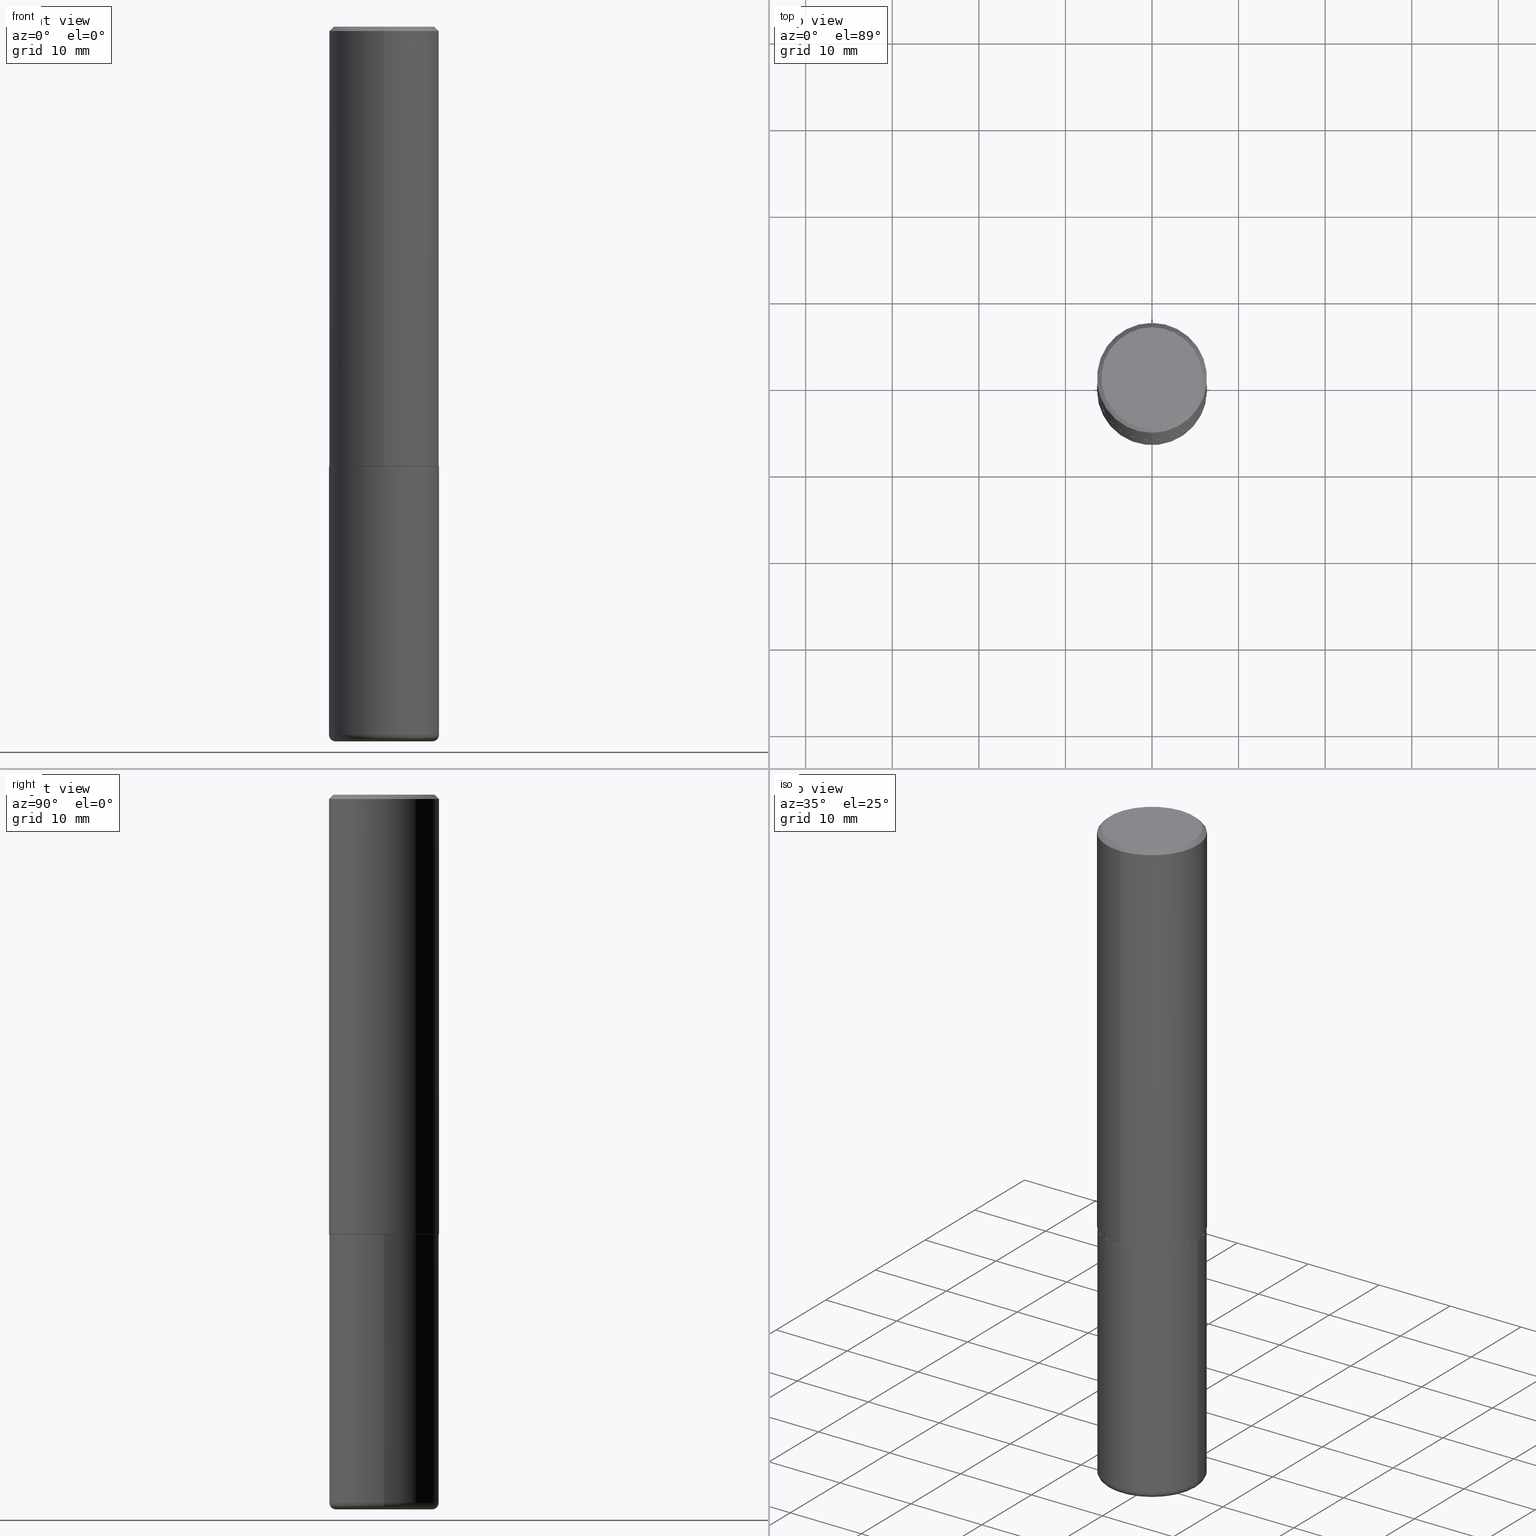
[diagram: canonical four-view strip — front | top / right | iso, engineering-drawing reading convention]
A machine part, canonical four-view strip (front | top / right | iso — engineering-drawing reading convention). The complete STEP part file that produces these views, byte-faithful:
ISO-10303-21;
HEADER;
FILE_DESCRIPTION (( 'STEP AP203' ),
    '1' );
FILE_NAME ('36618.STEP',
    '2024-03-01T17:04:01',
    ( '' ),
    ( '' ),
    'SwSTEP 2.0',
    'SolidWorks 2023',
    '' );
FILE_SCHEMA (( 'CONFIG_CONTROL_DESIGN' ));
ENDSEC;

DATA;
#1 = DIRECTION ( 'NONE',  ( 1.000000000000000000, -6.982962677686263555E-15, 4.883557194083112340E-29 ) ) ;
#2 = DIRECTION ( 'NONE',  ( -6.982962677686265133E-15, -1.000000000000000000, 3.291383124896702687E-15 ) ) ;
#3 = CLOSED_SHELL ( 'NONE', ( #72, #118, #346, #25, #196, #81 ) ) ;
#4 = PRODUCT_DEFINITION_FORMATION_WITH_SPECIFIED_SOURCE ( 'ANY', '', #134, .NOT_KNOWN. ) ;
#5 = EDGE_LOOP ( 'NONE', ( #264, #105, #76, #334 ) ) ;
#6 = ORIENTED_EDGE ( 'NONE', *, *, #54, .F. ) ;
#7 = ORIENTED_EDGE ( 'NONE', *, *, #62, .F. ) ;
#8 = LINE ( 'NONE', #41, #177 ) ;
#9 = CALENDAR_DATE ( 2024, 1, 3 ) ;
#10 = VERTEX_POINT ( 'NONE', #109 ) ;
#11 = DIRECTION ( 'NONE',  ( -2.443008383024178884E-29, 3.495004804848227221E-15, 1.000000000000000000 ) ) ;
#12 = DIRECTION ( 'NONE',  ( -6.982962677686266711E-15, -1.000000000000000000, 3.495004804848227221E-15 ) ) ;
#13 = PERSON_AND_ORGANIZATION ( #143, #390 ) ;
#14 = ORIENTED_EDGE ( 'NONE', *, *, #136, .F. ) ;
#15 = CIRCLE ( 'NONE', #314, 0.2500000000000000000 ) ;
#16 = PERSON_AND_ORGANIZATION_ROLE ( 'creator' ) ;
#17 = VERTEX_POINT ( 'NONE', #256 ) ;
#18 = CARTESIAN_POINT ( 'NONE',  ( 0.000000000000000000, 0.000000000000000000, 0.000000000000000000 ) ) ;
#19 = DIRECTION ( 'NONE',  ( -6.982962677686265133E-15, -1.000000000000000000, 3.278217592397113101E-15 ) ) ;
#20 = CIRCLE ( 'NONE', #50, 0.02999999999999971440 ) ;
#21 = EDGE_CURVE ( 'NONE', #289, #164, #394, .T. ) ;
#22 = FACE_OUTER_BOUND ( 'NONE', #204, .T. ) ;
#23 = PERSON_AND_ORGANIZATION ( #143, #390 ) ;
#24 = CARTESIAN_POINT ( 'NONE',  ( 0.2199999999999999734, -1.277882170016590784E-14, -3.220000000000000195 ) ) ;
#25 = ADVANCED_FACE ( 'NONE', ( #362 ), #45, .T. ) ;
#26 = CARTESIAN_POINT ( 'NONE',  ( 1.358398051899500366E-28, -3.275945279050347919E-15, -3.249999999999999556 ) ) ;
#27 = DATE_AND_TIME ( #86, #253 ) ;
#28 = DIMENSIONAL_EXPONENTS ( 1.000000000000000000, 0.000000000000000000, 0.000000000000000000, 0.000000000000000000, 0.000000000000000000, 0.000000000000000000, 0.000000000000000000 ) ;
#29 = CARTESIAN_POINT ( 'NONE',  ( 1.769251412042697971E-15, 0.2489999999999930047, -2.000000000000000888 ) ) ;
#30 = DIRECTION ( 'NONE',  ( -6.982962677686265922E-15, -1.000000000000000000, 3.495004804848226432E-15 ) ) ;
#31 = EDGE_CURVE ( 'NONE', #164, #234, #141, .T. ) ;
#32 = LINE ( 'NONE', #281, #284 ) ;
#33 = DIRECTION ( 'NONE',  ( 0.000000000000000000, 0.000000000000000000, 1.000000000000000000 ) ) ;
#34 = DIRECTION ( 'NONE',  ( 1.000000000000000000, -6.982962677686266711E-15, 0.000000000000000000 ) ) ;
#35 = APPROVAL_DATE_TIME ( #27, #316 ) ;
#36 = DIRECTION ( 'NONE',  ( -2.443008383024178604E-29, 3.495004804848226826E-15, 1.000000000000000000 ) ) ;
#37 = CLOSED_SHELL ( 'NONE', ( #75, #210, #154, #217, #198, #313, #144, #340 ) ) ;
#38 = CIRCLE ( 'NONE', #58, 0.2489999999999999991 ) ;
#39 = CARTESIAN_POINT ( 'NONE',  ( 0.2500000000000000000, -8.728703347107857054E-15, -2.000000000000000000 ) ) ;
#40 = PERSON_AND_ORGANIZATION ( #143, #390 ) ;
#41 = CARTESIAN_POINT ( 'NONE',  ( 1.776356839400250859E-15, 0.2500000000000001110, -8.737512012120570024E-16 ) ) ;
#42 = ORIENTED_EDGE ( 'NONE', *, *, #136, .T. ) ;
#43 = APPROVAL_PERSON_ORGANIZATION ( #120, #87, #151 ) ;
#44 = ORIENTED_EDGE ( 'NONE', *, *, #254, .T. ) ;
#45 = CYLINDRICAL_SURFACE ( 'NONE', #148, 0.2500000000000000000 ) ;
#46 = LENGTH_MEASURE_WITH_UNIT ( LENGTH_MEASURE( 0.02539999999999999897 ), #127 );
#47 = DATE_AND_TIME ( #9, #401 ) ;
#48 = ORIENTED_EDGE ( 'NONE', *, *, #183, .T. ) ;
#49 = ORIENTED_EDGE ( 'NONE', *, *, #406, .T. ) ;
#50 = AXIS2_PLACEMENT_3D ( 'NONE', #24, #227, #121 ) ;
#51 = EDGE_CURVE ( 'NONE', #129, #10, #85, .T. ) ;
#52 = EDGE_LOOP ( 'NONE', ( #259, #42, #137, #199 ) ) ;
#53 = DIRECTION ( 'NONE',  ( 1.000000000000000000, -6.982962677686266711E-15, 4.876176775795935793E-29 ) ) ;
#54 = EDGE_CURVE ( 'NONE', #10, #288, #312, .T. ) ;
#55 = CARTESIAN_POINT ( 'NONE',  ( 4.883573757665332873E-29, -6.986514604891604953E-15, -1.998999999999999888 ) ) ;
#56 = DIRECTION ( 'NONE',  ( -2.445468806185136877E-29, 3.491481338843145188E-15, 1.000000000000000000 ) ) ;
#57 = AXIS2_PLACEMENT_3D ( 'NONE', #26, #409, #276 ) ;
#58 = AXIS2_PLACEMENT_3D ( 'NONE', #321, #36, #216 ) ;
#59 = DIRECTION ( 'NONE',  ( -2.445468806185136597E-29, 3.491481338843145583E-15, 1.000000000000000000 ) ) ;
#60 = DIRECTION ( 'NONE',  ( 1.000000000000000000, 0.000000000000000000, 0.000000000000000000 ) ) ;
#61 = CARTESIAN_POINT ( 'NONE',  ( 1.776356839400276103E-15, 0.2499999999999932276, -1.999000000000000776 ) ) ;
#62 = EDGE_CURVE ( 'NONE', #283, #110, #300, .T. ) ;
#63 = DIRECTION ( 'NONE',  ( -2.445468806185136597E-29, 3.491481338843145583E-15, 1.000000000000000000 ) ) ;
#64 = AXIS2_PLACEMENT_3D ( 'NONE', #354, #63, #1 ) ;
#65 = AXIS2_PLACEMENT_3D ( 'NONE', #246, #191, #385 ) ;
#66 =( CONVERSION_BASED_UNIT ( 'INCH', #46 ) LENGTH_UNIT ( ) NAMED_UNIT ( #28 ) );
#67 = LINE ( 'NONE', #392, #269 ) ;
#68 = APPROVAL ( #398, 'UNSPECIFIED' ) ;
#69 = CARTESIAN_POINT ( 'NONE',  ( 4.886016766048357208E-29, -6.990009609696454441E-15, -2.000000000000000000 ) ) ;
#70 = EDGE_LOOP ( 'NONE', ( #393, #14 ) ) ;
#71 = ORIENTED_EDGE ( 'NONE', *, *, #251, .T. ) ;
#72 = ADVANCED_FACE ( 'NONE', ( #236 ), #211, .T. ) ;
#73 = AXIS2_PLACEMENT_3D ( 'NONE', #158, #315, #418 ) ;
#74 = CONICAL_SURFACE ( 'NONE', #295, 0.2489999999999999991, 0.7853981633975165577 ) ;
#75 = ADVANCED_FACE ( 'NONE', ( #113 ), #171, .T. ) ;
#76 = ORIENTED_EDGE ( 'NONE', *, *, #412, .F. ) ;
#77 = PERSON_AND_ORGANIZATION_ROLE ( 'design_supplier' ) ;
#78 = VERTEX_POINT ( 'NONE', #212 ) ;
#79 = EDGE_LOOP ( 'NONE', ( #280, #327, #396, #168 ) ) ;
#80 = EDGE_LOOP ( 'NONE', ( #368, #173, #6, #252 ) ) ;
#81 = ADVANCED_FACE ( 'NONE', ( #341 ), #184, .T. ) ;
#82 = CC_DESIGN_APPROVAL ( #316, ( #415 ) ) ;
#83 = DIRECTION ( 'NONE',  ( -2.443008383024178604E-29, 3.495004804848226826E-15, 1.000000000000000000 ) ) ;
#84 = EDGE_CURVE ( 'NONE', #10, #164, #32, .T. ) ;
#85 = LINE ( 'NONE', #175, #159 ) ;
#86 = CALENDAR_DATE ( 2024, 1, 3 ) ;
#87 = APPROVAL ( #92, 'UNSPECIFIED' ) ;
#88 = CIRCLE ( 'NONE', #357, 0.2500000000000000000 ) ;
#89 = ADVANCED_BREP_SHAPE_REPRESENTATION ( '36618', ( #214, #360, #195 ), #374 ) ;
#90 = CARTESIAN_POINT ( 'NONE',  ( -1.166879368671202230E-45, 1.669355303290318093E-31, 4.776403457227324398E-17 ) ) ;
#91 = CARTESIAN_POINT ( 'NONE',  ( 4.886016766048368698E-31, -6.990009609696470120E-17, -0.02000000000000004552 ) ) ;
#92 = APPROVAL_STATUS ( 'not_yet_approved' ) ;
#93 = PLANE ( 'NONE',  #240 ) ;
#94 = DATE_AND_TIME ( #380, #350 ) ;
#95 = FACE_OUTER_BOUND ( 'NONE', #397, .T. ) ;
#96 = AXIS2_PLACEMENT_3D ( 'NONE', #344, #372, #309 ) ;
#97 = LOCAL_TIME ( 12, 4, 1.000000000000000000, #367 ) ;
#98 = CARTESIAN_POINT ( 'NONE',  ( -0.2500000000000000000, -7.336409454980359463E-15, -2.000000000000000000 ) ) ;
#99 = CARTESIAN_POINT ( 'NONE',  ( 4.890937612370273194E-29, -6.982962677686291165E-15, -2.000000000000000000 ) ) ;
#100 = PERSON_AND_ORGANIZATION ( #143, #390 ) ;
#101 = CARTESIAN_POINT ( 'NONE',  ( 4.886016766048368698E-31, -6.990009609696470120E-17, -0.02000000000000004552 ) ) ;
#102 = SECURITY_CLASSIFICATION_LEVEL ( 'unclassified' ) ;
#103 = CIRCLE ( 'NONE', #324, 0.2299999999999999267 ) ;
#104 = EDGE_CURVE ( 'NONE', #78, #200, #302, .T. ) ;
#105 = ORIENTED_EDGE ( 'NONE', *, *, #265, .T. ) ;
#106 = DIRECTION ( 'NONE',  ( -2.443008383024178604E-29, 3.495004804848226826E-15, 1.000000000000000000 ) ) ;
#107 = DIRECTION ( 'NONE',  ( -4.851104656540959542E-15, -0.7071067811865493491, -0.7071067811865456854 ) ) ;
#108 = ORIENTED_EDGE ( 'NONE', *, *, #292, .F. ) ;
#109 = CARTESIAN_POINT ( 'NONE',  ( -1.745740669421519149E-15, -0.2500000000000072164, -1.998999999999999000 ) ) ;
#110 = VERTEX_POINT ( 'NONE', #98 ) ;
#111 = CC_DESIGN_DATE_AND_TIME_ASSIGNMENT ( #410, #384, ( #415 ) ) ;
#112 = SHAPE_DEFINITION_REPRESENTATION ( #403, #89 ) ;
#113 = FACE_OUTER_BOUND ( 'NONE', #80, .T. ) ;
#114 = CARTESIAN_POINT ( 'NONE',  ( 4.886016766048357208E-29, -6.990009609696454441E-15, -2.000000000000000000 ) ) ;
#115 = DIRECTION ( 'NONE',  ( -2.445468806185136597E-29, 3.491481338843145583E-15, 1.000000000000000000 ) ) ;
#116 = CIRCLE ( 'NONE', #389, 0.2199999999999999734 ) ;
#117 = AXIS2_PLACEMENT_3D ( 'NONE', #257, #106, #12 ) ;
#118 = ADVANCED_FACE ( 'NONE', ( #245 ), #239, .T. ) ;
#119 = DIRECTION ( 'NONE',  ( 7.105427357601001859E-15, 1.000000000000000000, -3.491481338843145583E-15 ) ) ;
#120 = PERSON_AND_ORGANIZATION ( #143, #390 ) ;
#121 = DIRECTION ( 'NONE',  ( 1.000000000000000000, -6.982962677686269866E-15, 0.000000000000000000 ) ) ;
#122 = ORIENTED_EDGE ( 'NONE', *, *, #370, .T. ) ;
#123 = DIRECTION ( 'NONE',  ( 6.982962677686265922E-15, 1.000000000000000000, -3.500180241882337261E-15 ) ) ;
#124 = CIRCLE ( 'NONE', #294, 0.2500000000000000000 ) ;
#125 = DIRECTION ( 'NONE',  ( 2.438088387897960049E-29, -3.491481338843145188E-15, -1.000000000000000000 ) ) ;
#126 = CC_DESIGN_PERSON_AND_ORGANIZATION_ASSIGNMENT ( #23, #145, ( #415 ) ) ;
#127 =( LENGTH_UNIT ( ) NAMED_UNIT ( * ) SI_UNIT ( $, .METRE. ) );
#128 = AXIS2_PLACEMENT_3D ( 'NONE', #146, #190, #413 ) ;
#129 = VERTEX_POINT ( 'NONE', #192 ) ;
#130 = EDGE_CURVE ( 'NONE', #234, #164, #124, .T. ) ;
#131 = CARTESIAN_POINT ( 'NONE',  ( -1.715124499442882299E-15, -0.2500000000000000555, -0.01999999999999917122 ) ) ;
#132 = VERTEX_POINT ( 'NONE', #39 ) ;
#133 = ORIENTED_EDGE ( 'NONE', *, *, #62, .T. ) ;
#134 = PRODUCT ( '36618', '36618', '', ( #218 ) ) ;
#135 = ORIENTED_EDGE ( 'NONE', *, *, #161, .T. ) ;
#136 = EDGE_CURVE ( 'NONE', #200, #78, #116, .T. ) ;
#137 = ORIENTED_EDGE ( 'NONE', *, *, #299, .T. ) ;
#138 = AXIS2_PLACEMENT_3D ( 'NONE', #219, #225, #369 ) ;
#139 = CARTESIAN_POINT ( 'NONE',  ( -1.715124499442882299E-15, -0.2500000000000000555, -0.01999999999999917122 ) ) ;
#140 = EDGE_LOOP ( 'NONE', ( #229, #48 ) ) ;
#141 = CIRCLE ( 'NONE', #382, 0.2500000000000000000 ) ;
#142 = CC_DESIGN_APPROVAL ( #68, ( #417 ) ) ;
#143 = PERSON ( 'UNSPECIFIED', 'UNSPECIFIED', 'UNSPECIFIED', ('UNSPECIFIED'), ('UNSPECIFIED'), ('UNSPECIFIED') ) ;
#144 = ADVANCED_FACE ( 'NONE', ( #404 ), #305, .F. ) ;
#145 = PERSON_AND_ORGANIZATION_ROLE ( 'creator' ) ;
#146 = CARTESIAN_POINT ( 'NONE',  ( 7.874409555916140425E-29, -1.124256991107492948E-14, -3.220000000000000195 ) ) ;
#147 = DIRECTION ( 'NONE',  ( -2.443008383024178043E-29, 3.495004804848227221E-15, 1.000000000000000000 ) ) ;
#148 = AXIS2_PLACEMENT_3D ( 'NONE', #170, #291, #205 ) ;
#149 = DIRECTION ( 'NONE',  ( -6.982962677686265133E-15, -1.000000000000000000, 3.291383124896702687E-15 ) ) ;
#150 = AXIS2_PLACEMENT_3D ( 'NONE', #193, #325, #163 ) ;
#151 = APPROVAL_ROLE ( '' ) ;
#152 = PRODUCT_RELATED_PRODUCT_CATEGORY ( 'detail', '', ( #134 ) ) ;
#153 = LINE ( 'NONE', #29, #338 ) ;
#154 = ADVANCED_FACE ( 'NONE', ( #408 ), #268, .T. ) ;
#155 = DIRECTION ( 'NONE',  ( -2.443008383024178884E-29, 3.495004804848227221E-15, 1.000000000000000000 ) ) ;
#156 = APPLICATION_PROTOCOL_DEFINITION ( 'international standard', 'config_control_design', 1994, #353 ) ;
#157 = CARTESIAN_POINT ( 'NONE',  ( -1.646519519465166968E-15, -0.2299999999999999267, 8.516151396873652617E-16 ) ) ;
#158 = CARTESIAN_POINT ( 'NONE',  ( 7.947773620101692818E-29, -1.134731435124022127E-14, -3.249999999999999556 ) ) ;
#159 = VECTOR ( 'NONE', #400, 39.37007874015748143 ) ;
#160 = AXIS2_PLACEMENT_3D ( 'NONE', #243, #377, #249 ) ;
#161 = EDGE_CURVE ( 'NONE', #17, #129, #222, .T. ) ;
#162 = COORDINATED_UNIVERSAL_TIME_OFFSET ( 5, 0, .BEHIND. ) ;
#163 = DIRECTION ( 'NONE',  ( 1.000000000000000000, -6.982962677686270655E-15, 0.000000000000000000 ) ) ;
#164 = VERTEX_POINT ( 'NONE', #131 ) ;
#165 = DIRECTION ( 'NONE',  ( -6.982962677686265922E-15, -1.000000000000000000, 3.500180241882337261E-15 ) ) ;
#166 = ORIENTED_EDGE ( 'NONE', *, *, #130, .T. ) ;
#167 = CC_DESIGN_APPROVAL ( #87, ( #4 ) ) ;
#168 = ORIENTED_EDGE ( 'NONE', *, *, #209, .F. ) ;
#169 = ORIENTED_EDGE ( 'NONE', *, *, #391, .T. ) ;
#170 = CARTESIAN_POINT ( 'NONE',  ( 0.000000000000000000, 0.000000000000000000, 0.000000000000000000 ) ) ;
#171 = CONICAL_SURFACE ( 'NONE', #96, 0.2489999999999999991, 0.7853981633975165577 ) ;
#172 = TOROIDAL_SURFACE ( 'NONE', #138, 0.2199999999999999734, 0.02999999999999971440 ) ;
#173 = ORIENTED_EDGE ( 'NONE', *, *, #292, .T. ) ;
#174 = PERSON_AND_ORGANIZATION ( #143, #390 ) ;
#175 = CARTESIAN_POINT ( 'NONE',  ( -1.738757706743831360E-15, -0.2490000000000069935, -1.999999999999999112 ) ) ;
#176 = AXIS2_PLACEMENT_3D ( 'NONE', #69, #286, #2 ) ;
#177 = VECTOR ( 'NONE', #11, 39.37007874015748143 ) ;
#178 = DIRECTION ( 'NONE',  ( 1.000000000000000000, -6.982962677686263555E-15, 0.000000000000000000 ) ) ;
#179 = CARTESIAN_POINT ( 'NONE',  ( 4.883573757665332873E-29, -6.986514604891604953E-15, -1.998999999999999888 ) ) ;
#180 = FACE_OUTER_BOUND ( 'NONE', #230, .T. ) ;
#181 = CARTESIAN_POINT ( 'NONE',  ( 4.890937612370273194E-29, -6.982962677686291165E-15, -2.000000000000000000 ) ) ;
#182 = APPROVAL_DATE_TIME ( #343, #68 ) ;
#183 = EDGE_CURVE ( 'NONE', #289, #361, #416, .T. ) ;
#184 = PLANE ( 'NONE',  #57 ) ;
#185 = PERSON_AND_ORGANIZATION_ROLE ( 'design_owner' ) ;
#186 = AXIS2_PLACEMENT_3D ( 'NONE', #375, #115, #53 ) ;
#187 = CARTESIAN_POINT ( 'NONE',  ( 0.2499999999999998612, -1.298831058049649616E-14, -3.220000000000000195 ) ) ;
#188 = LOCAL_TIME ( 12, 4, 1.000000000000000000, #310 ) ;
#189 = CARTESIAN_POINT ( 'NONE',  ( 0.000000000000000000, 0.000000000000000000, 0.000000000000000000 ) ) ;
#190 = DIRECTION ( 'NONE',  ( -2.445468806185136597E-29, 3.491481338843145583E-15, 1.000000000000000000 ) ) ;
#191 = DIRECTION ( 'NONE',  ( 2.443008383024178043E-29, -3.495004804848227221E-15, -1.000000000000000000 ) ) ;
#192 = CARTESIAN_POINT ( 'NONE',  ( -1.738757706743831360E-15, -0.2490000000000069935, -1.999999999999999112 ) ) ;
#193 = CARTESIAN_POINT ( 'NONE',  ( 7.874409555916140425E-29, -1.124256991107492948E-14, -3.220000000000000195 ) ) ;
#194 = VECTOR ( 'NONE', #402, 39.37007874015748143 ) ;
#195 = AXIS2_PLACEMENT_3D ( 'NONE', #189, #33, #60 ) ;
#196 = ADVANCED_FACE ( 'NONE', ( #206 ), #172, .T. ) ;
#197 = ORIENTED_EDGE ( 'NONE', *, *, #365, .F. ) ;
#198 = ADVANCED_FACE ( 'NONE', ( #180 ), #306, .T. ) ;
#199 = ORIENTED_EDGE ( 'NONE', *, *, #254, .F. ) ;
#200 = VERTEX_POINT ( 'NONE', #358 ) ;
#201 = ORIENTED_EDGE ( 'NONE', *, *, #251, .F. ) ;
#202 = PERSON_AND_ORGANIZATION_ROLE ( 'classification_officer' ) ;
#203 = ORIENTED_EDGE ( 'NONE', *, *, #370, .F. ) ;
#204 = EDGE_LOOP ( 'NONE', ( #297, #49, #326, #366 ) ) ;
#205 = DIRECTION ( 'NONE',  ( 1.000000000000000000, -6.982962677686266711E-15, 4.876176775795935793E-29 ) ) ;
#206 = FACE_OUTER_BOUND ( 'NONE', #52, .T. ) ;
#207 = CIRCLE ( 'NONE', #150, 0.2500000000000000000 ) ;
#208 = EDGE_LOOP ( 'NONE', ( #7, #44, #169, #201 ) ) ;
#209 = EDGE_CURVE ( 'NONE', #361, #234, #67, .T. ) ;
#210 = ADVANCED_FACE ( 'NONE', ( #22 ), #298, .T. ) ;
#211 = CYLINDRICAL_SURFACE ( 'NONE', #186, 0.2500000000000000000 ) ;
#212 = CARTESIAN_POINT ( 'NONE',  ( 0.2199999999999999734, -1.288356614033119963E-14, -3.249999999999999556 ) ) ;
#213 = CONICAL_SURFACE ( 'NONE', #247, 0.2500000000000000000, 0.7853981633974473908 ) ;
#214 = MANIFOLD_SOLID_BREP ( 'Body-Move/Copy2[1]', #3 ) ;
#215 = PERSON_AND_ORGANIZATION ( #143, #390 ) ;
#216 = DIRECTION ( 'NONE',  ( -6.982962677686265133E-15, -1.000000000000000000, 3.291383124896702687E-15 ) ) ;
#217 = ADVANCED_FACE ( 'NONE', ( #95 ), #213, .T. ) ;
#218 = MECHANICAL_CONTEXT ( 'NONE', #303, 'mechanical' ) ;
#219 = CARTESIAN_POINT ( 'NONE',  ( 7.874409555916140425E-29, -1.124256991107492948E-14, -3.220000000000000195 ) ) ;
#220 = LINE ( 'NONE', #347, #261 ) ;
#221 = APPROVAL_DATE_TIME ( #94, #87 ) ;
#222 = CIRCLE ( 'NONE', #176, 0.2489999999999999991 ) ;
#223 = DIRECTION ( 'NONE',  ( -2.443008383024178604E-29, 3.495004804848226826E-15, 1.000000000000000000 ) ) ;
#224 = APPROVAL_PERSON_ORGANIZATION ( #13, #68, #262 ) ;
#225 = DIRECTION ( 'NONE',  ( -2.445468806185136597E-29, 3.491481338843145583E-15, 1.000000000000000000 ) ) ;
#226 = PLANE ( 'NONE',  #65 ) ;
#227 = DIRECTION ( 'NONE',  ( -6.982962677686266711E-15, -1.000000000000000000, 3.491481338843145583E-15 ) ) ;
#228 = CIRCLE ( 'NONE', #407, 0.02999999999999971440 ) ;
#229 = ORIENTED_EDGE ( 'NONE', *, *, #237, .T. ) ;
#230 = EDGE_LOOP ( 'NONE', ( #388, #122, #332, #330 ) ) ;
#231 =( NAMED_UNIT ( * ) SI_UNIT ( $, .STERADIAN. ) SOLID_ANGLE_UNIT ( ) );
#232 = ORIENTED_EDGE ( 'NONE', *, *, #329, .T. ) ;
#233 = ORIENTED_EDGE ( 'NONE', *, *, #391, .F. ) ;
#234 = VERTEX_POINT ( 'NONE', #345 ) ;
#235 = CIRCLE ( 'NONE', #128, 0.2500000000000000000 ) ;
#236 = FACE_OUTER_BOUND ( 'NONE', #285, .T. ) ;
#237 = EDGE_CURVE ( 'NONE', #361, #289, #103, .T. ) ;
#238 = DIRECTION ( 'NONE',  ( -2.443008383024178604E-29, 3.495004804848226826E-15, 1.000000000000000000 ) ) ;
#239 = TOROIDAL_SURFACE ( 'NONE', #64, 0.2199999999999999734, 0.02999999999999971440 ) ;
#240 = AXIS2_PLACEMENT_3D ( 'NONE', #99, #125, #355 ) ;
#241 = DIRECTION ( 'NONE',  ( 5.024295867788404755E-15, 0.7071067811865981989, 0.7071067811864968355 ) ) ;
#242 = DIRECTION ( 'NONE',  ( -2.445468806185136597E-29, 3.491481338843145583E-15, 1.000000000000000000 ) ) ;
#243 = CARTESIAN_POINT ( 'NONE',  ( 0.000000000000000000, 0.000000000000000000, 0.000000000000000000 ) ) ;
#244 = COORDINATED_UNIVERSAL_TIME_OFFSET ( 5, 0, .BEHIND. ) ;
#245 = FACE_OUTER_BOUND ( 'NONE', #5, .T. ) ;
#246 = CARTESIAN_POINT ( 'NONE',  ( 1.606081415867840870E-15, 0.2299999999999999267, -7.799690878289553895E-16 ) ) ;
#247 = AXIS2_PLACEMENT_3D ( 'NONE', #101, #279, #123 ) ;
#248 = FACE_OUTER_BOUND ( 'NONE', #258, .T. ) ;
#249 = DIRECTION ( 'NONE',  ( -6.982962677686265922E-15, -1.000000000000000000, 3.495004804848226432E-15 ) ) ;
#250 = CARTESIAN_POINT ( 'NONE',  ( 7.947773620101692818E-29, -1.134731435124022127E-14, -3.249999999999999556 ) ) ;
#251 = EDGE_CURVE ( 'NONE', #110, #132, #88, .T. ) ;
#252 = ORIENTED_EDGE ( 'NONE', *, *, #51, .F. ) ;
#253 = LOCAL_TIME ( 12, 4, 1.000000000000000000, #373 ) ;
#254 = EDGE_CURVE ( 'NONE', #283, #263, #235, .T. ) ;
#255 = ORIENTED_EDGE ( 'NONE', *, *, #21, .F. ) ;
#256 = CARTESIAN_POINT ( 'NONE',  ( 1.772804125721499264E-15, 0.2489999999999930047, -2.000000000000000888 ) ) ;
#257 = CARTESIAN_POINT ( 'NONE',  ( -1.166879368671202230E-45, 1.669355303290318093E-31, 4.776403457227324398E-17 ) ) ;
#258 = EDGE_LOOP ( 'NONE', ( #232, #71 ) ) ;
#259 = ORIENTED_EDGE ( 'NONE', *, *, #265, .F. ) ;
#260 = AXIS2_PLACEMENT_3D ( 'NONE', #179, #83, #19 ) ;
#261 = VECTOR ( 'NONE', #56, 39.37007874015748143 ) ;
#262 = APPROVAL_ROLE ( '' ) ;
#263 = VERTEX_POINT ( 'NONE', #187 ) ;
#264 = ORIENTED_EDGE ( 'NONE', *, *, #104, .T. ) ;
#265 = EDGE_CURVE ( 'NONE', #200, #283, #228, .T. ) ;
#266 = DIRECTION ( 'NONE',  ( -6.982962677686265922E-15, -1.000000000000000000, 3.500180241882337261E-15 ) ) ;
#267 = CC_DESIGN_PERSON_AND_ORGANIZATION_ASSIGNMENT ( #174, #16, ( #4 ) ) ;
#268 = CONICAL_SURFACE ( 'NONE', #363, 0.2500000000000000000, 0.7853981633974473908 ) ;
#269 = VECTOR ( 'NONE', #337, 39.37007874015748143 ) ;
#270 = CARTESIAN_POINT ( 'NONE',  ( 4.890937612370273194E-29, -6.982962677686291165E-15, -2.000000000000000000 ) ) ;
#271 = DIRECTION ( 'NONE',  ( -6.982962677686265922E-15, -1.000000000000000000, 3.495004804848227221E-15 ) ) ;
#272 = AXIS2_PLACEMENT_3D ( 'NONE', #55, #274, #411 ) ;
#273 = CARTESIAN_POINT ( 'NONE',  ( -0.2500000000000000000, 1.776356839400250465E-15, -1.229733772563726445E-29 ) ) ;
#274 = DIRECTION ( 'NONE',  ( -2.443008383024178604E-29, 3.495004804848226826E-15, 1.000000000000000000 ) ) ;
#275 = DIRECTION ( 'NONE',  ( 2.443008383024178604E-29, -3.495004804848226826E-15, -1.000000000000000000 ) ) ;
#276 = DIRECTION ( 'NONE',  ( -1.000000000000000000, 6.982962677686265922E-15, -4.876176775795935793E-29 ) ) ;
#277 = CARTESIAN_POINT ( 'NONE',  ( 4.886016766048357208E-29, -6.990009609696454441E-15, -2.000000000000000000 ) ) ;
#278 = CC_DESIGN_PERSON_AND_ORGANIZATION_ASSIGNMENT ( #40, #202, ( #417 ) ) ;
#279 = DIRECTION ( 'NONE',  ( 2.443008383024178604E-29, -3.495004804848226826E-15, -1.000000000000000000 ) ) ;
#280 = ORIENTED_EDGE ( 'NONE', *, *, #183, .F. ) ;
#281 = CARTESIAN_POINT ( 'NONE',  ( -1.745740669421567269E-15, -0.2500000000000001110, 8.737512012120570024E-16 ) ) ;
#282 = DIRECTION ( 'NONE',  ( -2.445468806185136597E-29, 3.491481338843145583E-15, 1.000000000000000000 ) ) ;
#283 = VERTEX_POINT ( 'NONE', #387 ) ;
#284 = VECTOR ( 'NONE', #155, 39.37007874015748143 ) ;
#285 = EDGE_LOOP ( 'NONE', ( #335, #133, #287, #233 ) ) ;
#286 = DIRECTION ( 'NONE',  ( -2.443008383024178604E-29, 3.495004804848226826E-15, 1.000000000000000000 ) ) ;
#287 = ORIENTED_EDGE ( 'NONE', *, *, #329, .F. ) ;
#288 = VERTEX_POINT ( 'NONE', #61 ) ;
#289 = VERTEX_POINT ( 'NONE', #157 ) ;
#290 = DATE_TIME_ROLE ( 'classification_date' ) ;
#291 = DIRECTION ( 'NONE',  ( -2.445468806185136597E-29, 3.491481338843145583E-15, 1.000000000000000000 ) ) ;
#292 = EDGE_CURVE ( 'NONE', #17, #288, #153, .T. ) ;
#293 = EDGE_LOOP ( 'NONE', ( #108, #135, #399, #203 ) ) ;
#294 = AXIS2_PLACEMENT_3D ( 'NONE', #322, #352, #165 ) ;
#295 = AXIS2_PLACEMENT_3D ( 'NONE', #277, #319, #149 ) ;
#296 = CARTESIAN_POINT ( 'NONE',  ( 4.886016766048368698E-31, -6.990009609696470120E-17, -0.02000000000000004552 ) ) ;
#297 = ORIENTED_EDGE ( 'NONE', *, *, #54, .T. ) ;
#298 = CYLINDRICAL_SURFACE ( 'NONE', #383, 0.2500000000000001110 ) ;
#299 = EDGE_CURVE ( 'NONE', #78, #263, #20, .T. ) ;
#300 = LINE ( 'NONE', #273, #194 ) ;
#301 = APPLICATION_PROTOCOL_DEFINITION ( 'international standard', 'config_control_design', 1994, #303 ) ;
#302 = CIRCLE ( 'NONE', #73, 0.2199999999999999734 ) ;
#303 = APPLICATION_CONTEXT ( 'configuration controlled 3d designs of mechanical parts and assemblies' ) ;
#304 = CIRCLE ( 'NONE', #272, 0.2500000000000002220 ) ;
#305 = PLANE ( 'NONE',  #348 ) ;
#306 = CYLINDRICAL_SURFACE ( 'NONE', #160, 0.2500000000000001110 ) ;
#307 = PERSON_AND_ORGANIZATION ( #143, #390 ) ;
#308 = DIRECTION ( 'NONE',  ( 1.000000000000000000, -6.982962677686266711E-15, 0.000000000000000000 ) ) ;
#309 = DIRECTION ( 'NONE',  ( -6.982962677686265133E-15, -1.000000000000000000, 3.291383124896702687E-15 ) ) ;
#310 = COORDINATED_UNIVERSAL_TIME_OFFSET ( 5, 0, .BEHIND. ) ;
#311 = CARTESIAN_POINT ( 'NONE',  ( -0.2199999999999999734, -9.679375892402709259E-15, -3.220000000000000195 ) ) ;
#312 = CIRCLE ( 'NONE', #260, 0.2500000000000002220 ) ;
#313 = ADVANCED_FACE ( 'NONE', ( #414 ), #74, .T. ) ;
#314 = AXIS2_PLACEMENT_3D ( 'NONE', #270, #242, #34 ) ;
#315 = DIRECTION ( 'NONE',  ( -2.445468806185136597E-29, 3.491481338843145583E-15, 1.000000000000000000 ) ) ;
#316 = APPROVAL ( #378, 'UNSPECIFIED' ) ;
#317 = CALENDAR_DATE ( 2024, 1, 3 ) ;
#318 = DIRECTION ( 'NONE',  ( -1.000000000000000000, 7.105427357600993970E-15, 0.000000000000000000 ) ) ;
#319 = DIRECTION ( 'NONE',  ( -2.443008383024178604E-29, 3.495004804848226826E-15, 1.000000000000000000 ) ) ;
#320 = APPROVAL_ROLE ( '' ) ;
#321 = CARTESIAN_POINT ( 'NONE',  ( 4.886016766048357208E-29, -6.990009609696454441E-15, -2.000000000000000000 ) ) ;
#322 = CARTESIAN_POINT ( 'NONE',  ( 4.886016766048368698E-31, -6.990009609696470120E-17, -0.02000000000000004552 ) ) ;
#323 = VECTOR ( 'NONE', #107, 39.37007874015748143 ) ;
#324 = AXIS2_PLACEMENT_3D ( 'NONE', #90, #223, #351 ) ;
#325 = DIRECTION ( 'NONE',  ( -2.445468806185136597E-29, 3.491481338843145583E-15, 1.000000000000000000 ) ) ;
#326 = ORIENTED_EDGE ( 'NONE', *, *, #31, .F. ) ;
#327 = ORIENTED_EDGE ( 'NONE', *, *, #21, .T. ) ;
#328 = UNCERTAINTY_MEASURE_WITH_UNIT (LENGTH_MEASURE( 1.000000000000000082E-05 ), #66, 'distance_accuracy_value', 'NONE');
#329 = EDGE_CURVE ( 'NONE', #132, #110, #15, .T. ) ;
#330 = ORIENTED_EDGE ( 'NONE', *, *, #130, .F. ) ;
#331 = APPROVAL_PERSON_ORGANIZATION ( #307, #316, #320 ) ;
#332 = ORIENTED_EDGE ( 'NONE', *, *, #84, .T. ) ;
#333 = DESIGN_CONTEXT ( 'detailed design', #353, 'design' ) ;
#334 = ORIENTED_EDGE ( 'NONE', *, *, #299, .F. ) ;
#335 = ORIENTED_EDGE ( 'NONE', *, *, #412, .T. ) ;
#336 = ORIENTED_EDGE ( 'NONE', *, *, #209, .T. ) ;
#337 = DIRECTION ( 'NONE',  ( 4.937700262164543309E-15, 0.7071067811865444641, -0.7071067811865505703 ) ) ;
#338 = VECTOR ( 'NONE', #241, 39.37007874015748143 ) ;
#339 = CC_DESIGN_PERSON_AND_ORGANIZATION_ASSIGNMENT ( #215, #185, ( #134 ) ) ;
#340 = ADVANCED_FACE ( 'NONE', ( #405 ), #226, .F. ) ;
#341 = FACE_OUTER_BOUND ( 'NONE', #70, .T. ) ;
#342 = CC_DESIGN_DATE_AND_TIME_ASSIGNMENT ( #47, #290, ( #417 ) ) ;
#343 = DATE_AND_TIME ( #371, #97 ) ;
#344 = CARTESIAN_POINT ( 'NONE',  ( 4.886016766048357208E-29, -6.990009609696454441E-15, -2.000000000000000000 ) ) ;
#345 = CARTESIAN_POINT ( 'NONE',  ( 1.745740669421566875E-15, 0.2499999999999999167, -0.02000000000000092329 ) ) ;
#346 = ADVANCED_FACE ( 'NONE', ( #248 ), #93, .F. ) ;
#347 = CARTESIAN_POINT ( 'NONE',  ( 0.2500000000000000000, -1.745740669421566678E-15, 1.219044193948983948E-29 ) ) ;
#348 = AXIS2_PLACEMENT_3D ( 'NONE', #114, #147, #271 ) ;
#349 = CC_DESIGN_PERSON_AND_ORGANIZATION_ASSIGNMENT ( #100, #77, ( #4 ) ) ;
#350 = LOCAL_TIME ( 12, 4, 1.000000000000000000, #244 ) ;
#351 = DIRECTION ( 'NONE',  ( -6.982962677686266711E-15, -1.000000000000000000, 3.495004804848227221E-15 ) ) ;
#352 = DIRECTION ( 'NONE',  ( -2.443008383024178604E-29, 3.495004804848226826E-15, 1.000000000000000000 ) ) ;
#353 = APPLICATION_CONTEXT ( 'configuration controlled 3d designs of mechanical parts and assemblies' ) ;
#354 = CARTESIAN_POINT ( 'NONE',  ( 7.874409555916140425E-29, -1.124256991107492948E-14, -3.220000000000000195 ) ) ;
#355 = DIRECTION ( 'NONE',  ( -1.000000000000000000, 6.982962677686265922E-15, -4.876176775795935793E-29 ) ) ;
#356 = EDGE_LOOP ( 'NONE', ( #197, #359 ) ) ;
#357 = AXIS2_PLACEMENT_3D ( 'NONE', #181, #59, #308 ) ;
#358 = CARTESIAN_POINT ( 'NONE',  ( -0.2199999999999999734, -9.625166702121341610E-15, -3.249999999999999556 ) ) ;
#359 = ORIENTED_EDGE ( 'NONE', *, *, #161, .F. ) ;
#360 = MANIFOLD_SOLID_BREP ( 'Body-Move/Copy2[2]', #37 ) ;
#361 = VERTEX_POINT ( 'NONE', #376 ) ;
#362 = FACE_OUTER_BOUND ( 'NONE', #208, .T. ) ;
#363 = AXIS2_PLACEMENT_3D ( 'NONE', #91, #275, #381 ) ;
#364 = CC_DESIGN_SECURITY_CLASSIFICATION ( #417, ( #4 ) ) ;
#365 = EDGE_CURVE ( 'NONE', #129, #17, #38, .T. ) ;
#366 = ORIENTED_EDGE ( 'NONE', *, *, #84, .F. ) ;
#367 = COORDINATED_UNIVERSAL_TIME_OFFSET ( 5, 0, .BEHIND. ) ;
#368 = ORIENTED_EDGE ( 'NONE', *, *, #365, .T. ) ;
#369 = DIRECTION ( 'NONE',  ( 1.000000000000000000, -6.982962677686263555E-15, 4.883557194083112340E-29 ) ) ;
#370 = EDGE_CURVE ( 'NONE', #288, #10, #304, .T. ) ;
#371 = CALENDAR_DATE ( 2024, 1, 3 ) ;
#372 = DIRECTION ( 'NONE',  ( -2.443008383024178604E-29, 3.495004804848226826E-15, 1.000000000000000000 ) ) ;
#373 = COORDINATED_UNIVERSAL_TIME_OFFSET ( 5, 0, .BEHIND. ) ;
#374 =( GEOMETRIC_REPRESENTATION_CONTEXT ( 3 ) GLOBAL_UNCERTAINTY_ASSIGNED_CONTEXT ( ( #328 ) ) GLOBAL_UNIT_ASSIGNED_CONTEXT ( ( #66, #395, #231 ) ) REPRESENTATION_CONTEXT ( 'NONE', 'WORKASPACE' ) );
#375 = CARTESIAN_POINT ( 'NONE',  ( 0.000000000000000000, 0.000000000000000000, 0.000000000000000000 ) ) ;
#376 = CARTESIAN_POINT ( 'NONE',  ( 1.675911042644703774E-15, 0.2299999999999999267, -7.560870705428187983E-16 ) ) ;
#377 = DIRECTION ( 'NONE',  ( -2.443008383024178604E-29, 3.495004804848226826E-15, 1.000000000000000000 ) ) ;
#378 = APPROVAL_STATUS ( 'not_yet_approved' ) ;
#379 = DIRECTION ( 'NONE',  ( -2.443008383024178604E-29, 3.495004804848226826E-15, 1.000000000000000000 ) ) ;
#380 = CALENDAR_DATE ( 2024, 1, 3 ) ;
#381 = DIRECTION ( 'NONE',  ( 6.982962677686265922E-15, 1.000000000000000000, -3.500180241882337261E-15 ) ) ;
#382 = AXIS2_PLACEMENT_3D ( 'NONE', #296, #238, #266 ) ;
#383 = AXIS2_PLACEMENT_3D ( 'NONE', #18, #379, #30 ) ;
#384 = DATE_TIME_ROLE ( 'creation_date' ) ;
#385 = DIRECTION ( 'NONE',  ( 6.982962677686265922E-15, 1.000000000000000000, -3.495004804848227221E-15 ) ) ;
#386 = ORIENTED_EDGE ( 'NONE', *, *, #237, .F. ) ;
#387 = CARTESIAN_POINT ( 'NONE',  ( -0.2499999999999998612, -9.466213071674679013E-15, -3.220000000000000195 ) ) ;
#388 = ORIENTED_EDGE ( 'NONE', *, *, #406, .F. ) ;
#389 = AXIS2_PLACEMENT_3D ( 'NONE', #250, #282, #178 ) ;
#390 = ORGANIZATION ( 'UNSPECIFIED', 'UNSPECIFIED', '' ) ;
#391 = EDGE_CURVE ( 'NONE', #263, #132, #220, .T. ) ;
#392 = CARTESIAN_POINT ( 'NONE',  ( 1.745740669421566875E-15, 0.2499999999999999167, -0.02000000000000092329 ) ) ;
#393 = ORIENTED_EDGE ( 'NONE', *, *, #104, .F. ) ;
#394 = LINE ( 'NONE', #139, #323 ) ;
#395 =( NAMED_UNIT ( * ) PLANE_ANGLE_UNIT ( ) SI_UNIT ( $, .RADIAN. ) );
#396 = ORIENTED_EDGE ( 'NONE', *, *, #31, .T. ) ;
#397 = EDGE_LOOP ( 'NONE', ( #255, #386, #336, #166 ) ) ;
#398 = APPROVAL_STATUS ( 'not_yet_approved' ) ;
#399 = ORIENTED_EDGE ( 'NONE', *, *, #51, .T. ) ;
#400 = DIRECTION ( 'NONE',  ( -4.937700262164884886E-15, -0.7071067811865933139, 0.7071067811865017205 ) ) ;
#401 = LOCAL_TIME ( 12, 4, 1.000000000000000000, #162 ) ;
#402 = DIRECTION ( 'NONE',  ( -2.445468806185136877E-29, 3.491481338843145188E-15, 1.000000000000000000 ) ) ;
#403 = PRODUCT_DEFINITION_SHAPE ( 'NONE', 'NONE',  #415 ) ;
#404 = FACE_OUTER_BOUND ( 'NONE', #356, .T. ) ;
#405 = FACE_OUTER_BOUND ( 'NONE', #140, .T. ) ;
#406 = EDGE_CURVE ( 'NONE', #288, #234, #8, .T. ) ;
#407 = AXIS2_PLACEMENT_3D ( 'NONE', #311, #119, #318 ) ;
#408 = FACE_OUTER_BOUND ( 'NONE', #79, .T. ) ;
#409 = DIRECTION ( 'NONE',  ( 2.438088387897960049E-29, -3.491481338843145188E-15, -1.000000000000000000 ) ) ;
#410 = DATE_AND_TIME ( #317, #188 ) ;
#411 = DIRECTION ( 'NONE',  ( -6.982962677686265133E-15, -1.000000000000000000, 3.278217592397113101E-15 ) ) ;
#412 = EDGE_CURVE ( 'NONE', #263, #283, #207, .T. ) ;
#413 = DIRECTION ( 'NONE',  ( 1.000000000000000000, -6.982962677686270655E-15, 0.000000000000000000 ) ) ;
#414 = FACE_OUTER_BOUND ( 'NONE', #293, .T. ) ;
#415 = PRODUCT_DEFINITION ( 'UNKNOWN', '', #4, #333 ) ;
#416 = CIRCLE ( 'NONE', #117, 0.2299999999999999267 ) ;
#417 = SECURITY_CLASSIFICATION ( '', '', #102 ) ;
#418 = DIRECTION ( 'NONE',  ( 1.000000000000000000, -6.982962677686263555E-15, 0.000000000000000000 ) ) ;
ENDSEC;
END-ISO-10303-21;
